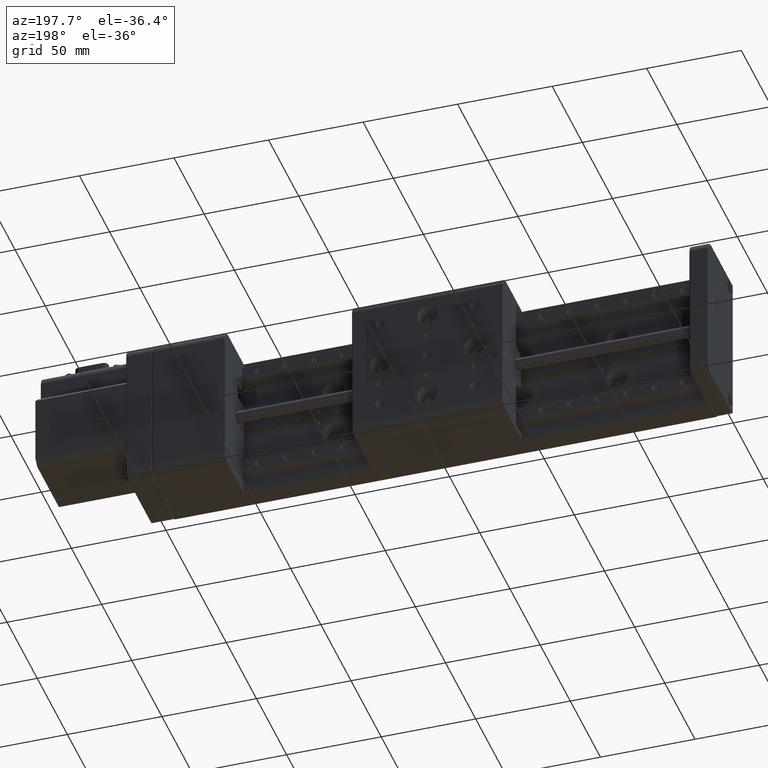
[diagram: clean part render]
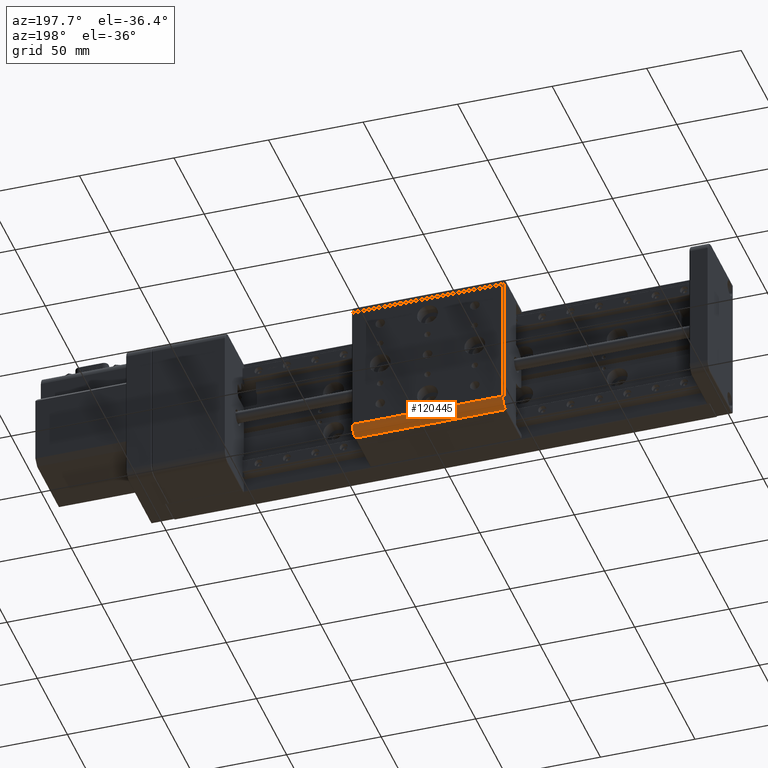
[diagram: same view with one face highlighted and labeled with its STEP entity id]
A machine part, auxiliary view. The second image highlights one B-rep face of the part: STEP entity #120445.
In plain terms, the highlighted cylindrical surface (edge-blend (fillet) strip) has radius 5 mm, axis along (-1, -0, -0).
Its self-contained STEP definition (entity closure, byte-faithful):
#9412 = VECTOR ( 'NONE', #85654, 1000.000000000000000 ) ;
#9415 = EDGE_CURVE ( 'NONE', #45077, #35933, #30684, .T. ) ;
#11934 = AXIS2_PLACEMENT_3D ( 'NONE', #82159, #15698, #82958 ) ;
#14687 = VERTEX_POINT ( 'NONE', #110280 ) ;
#15342 = ORIENTED_EDGE ( 'NONE', *, *, #48567, .T. ) ;
#15698 = DIRECTION ( 'NONE',  ( 1.000000000000000000, 0.0000000000000000000, 0.0000000000000000000 ) ) ;
#22442 = DIRECTION ( 'NONE',  ( -1.000000000000000000, -0.0000000000000000000, -0.0000000000000000000 ) ) ;
#22970 = EDGE_CURVE ( 'NONE', #45077, #14687, #101010, .T. ) ;
#24016 = DIRECTION ( 'NONE',  ( 0.0000000000000000000, 1.000000000000000000, 0.0000000000000000000 ) ) ;
#27508 = ORIENTED_EDGE ( 'NONE', *, *, #9415, .F. ) ;
#30684 = LINE ( 'NONE', #48533, #116192 ) ;
#35933 = VERTEX_POINT ( 'NONE', #96881 ) ;
#38216 = FACE_OUTER_BOUND ( 'NONE', #60437, .T. ) ;
#40230 = VERTEX_POINT ( 'NONE', #43192 ) ;
#41073 = CARTESIAN_POINT ( 'NONE',  ( 107.7846393998153600, 38.50000000000002800, -75.00000000000045500 ) ) ;
#41937 = LINE ( 'NONE', #114885, #9412 ) ;
#43192 = CARTESIAN_POINT ( 'NONE',  ( 187.4846393998153600, 43.50000000000002100, -75.00000000000045500 ) ) ;
#45077 = VERTEX_POINT ( 'NONE', #67174 ) ;
#48533 = CARTESIAN_POINT ( 'NONE',  ( 187.7846393998153800, 38.50000000000002800, -80.00000000000045500 ) ) ;
#48567 = EDGE_CURVE ( 'NONE', #40230, #35933, #122212, .T. ) ;
#52171 = DIRECTION ( 'NONE',  ( 0.0000000000000000000, 1.000000000000000000, 0.0000000000000000000 ) ) ;
#60437 = EDGE_LOOP ( 'NONE', ( #27508, #97222, #95041, #15342 ) ) ;
#66197 = CYLINDRICAL_SURFACE ( 'NONE', #82093, 4.999999999999997300 ) ;
#67174 = CARTESIAN_POINT ( 'NONE',  ( 108.0846393998153900, 38.50000000000002800, -80.00000000000045500 ) ) ;
#69413 = DIRECTION ( 'NONE',  ( -1.000000000000000000, -0.0000000000000000000, -0.0000000000000000000 ) ) ;
#75766 = AXIS2_PLACEMENT_3D ( 'NONE', #83499, #69413, #24016 ) ;
#82093 = AXIS2_PLACEMENT_3D ( 'NONE', #41073, #22442, #52171 ) ;
#82159 = CARTESIAN_POINT ( 'NONE',  ( 108.0846393998153900, 38.50000000000002800, -75.00000000000045500 ) ) ;
#82958 = DIRECTION ( 'NONE',  ( 0.0000000000000000000, -1.000000000000000000, 0.0000000000000000000 ) ) ;
#83499 = CARTESIAN_POINT ( 'NONE',  ( 187.4846393998153600, 38.50000000000002800, -75.00000000000045500 ) ) ;
#85654 = DIRECTION ( 'NONE',  ( -1.000000000000000000, -0.0000000000000000000, -0.0000000000000000000 ) ) ;
#91613 = EDGE_CURVE ( 'NONE', #40230, #14687, #41937, .T. ) ;
#95041 = ORIENTED_EDGE ( 'NONE', *, *, #91613, .F. ) ;
#96881 = CARTESIAN_POINT ( 'NONE',  ( 187.4846393998153600, 38.50000000000002800, -80.00000000000045500 ) ) ;
#97222 = ORIENTED_EDGE ( 'NONE', *, *, #22970, .T. ) ;
#101010 = CIRCLE ( 'NONE', #11934, 4.999999999999997300 ) ;
#110280 = CARTESIAN_POINT ( 'NONE',  ( 108.0846393998153900, 43.50000000000002100, -75.00000000000045500 ) ) ;
#114885 = CARTESIAN_POINT ( 'NONE',  ( 107.7846393998153600, 43.50000000000002100, -75.00000000000045500 ) ) ;
#116192 = VECTOR ( 'NONE', #118055, 1000.000000000000000 ) ;
#118055 = DIRECTION ( 'NONE',  ( 1.000000000000000000, 0.0000000000000000000, 0.0000000000000000000 ) ) ;
#120445 = ADVANCED_FACE ( 'NONE', ( #38216 ), #66197, .T. ) ;
#122212 = CIRCLE ( 'NONE', #75766, 4.999999999999997300 ) ;